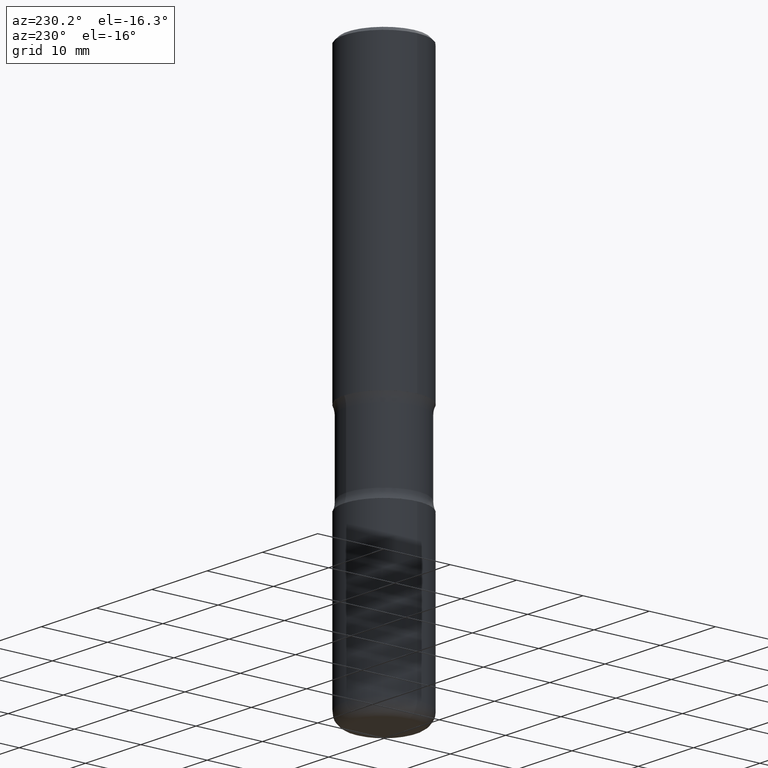
[diagram: clean part render]
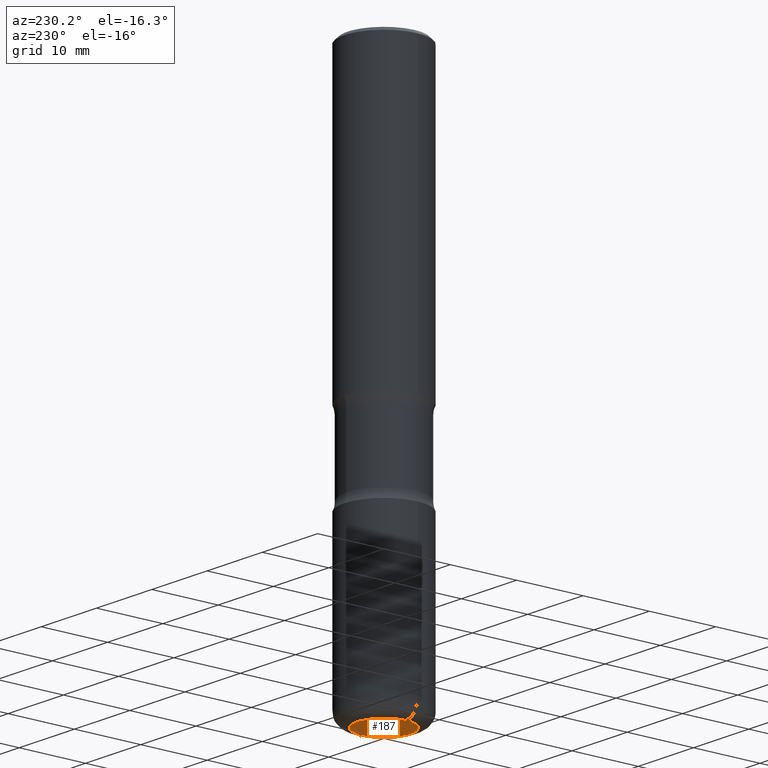
[diagram: same view with one face highlighted and labeled with its STEP entity id]
A machine part, auxiliary view. The second image highlights one B-rep face of the part: STEP entity #187.
In plain terms, the highlighted planar face has unit normal (0, -0, -1).
Its self-contained STEP definition (entity closure, byte-faithful):
#8 = DIRECTION ( 'NONE',  ( -2.445468806185136597E-29, 3.491481338843145583E-15, 1.000000000000000000 ) ) ;
#43 = DIRECTION ( 'NONE',  ( -2.445468806185136597E-29, 3.491481338843145583E-15, 1.000000000000000000 ) ) ;
#59 = CIRCLE ( 'NONE', #102, 0.1575000000000005285 ) ;
#91 = CARTESIAN_POINT ( 'NONE',  ( 7.991058417971172834E-29, -1.140911357093774960E-14, -3.267700000000000937 ) ) ;
#98 = FACE_OUTER_BOUND ( 'NONE', #536, .T. ) ;
#102 = AXIS2_PLACEMENT_3D ( 'NONE', #222, #43, #432 ) ;
#134 = AXIS2_PLACEMENT_3D ( 'NONE', #91, #8, #295 ) ;
#140 = DIRECTION ( 'NONE',  ( 2.438088387897960049E-29, -3.491481338843145188E-15, -1.000000000000000000 ) ) ;
#146 = VERTEX_POINT ( 'NONE', #440 ) ;
#164 = ORIENTED_EDGE ( 'NONE', *, *, #508, .F. ) ;
#170 = ORIENTED_EDGE ( 'NONE', *, *, #489, .F. ) ;
#187 = ADVANCED_FACE ( 'NONE', ( #98 ), #443, .T. ) ;
#201 = VERTEX_POINT ( 'NONE', #433 ) ;
#222 = CARTESIAN_POINT ( 'NONE',  ( 7.991058417971172834E-29, -1.140911357093774960E-14, -3.267700000000000937 ) ) ;
#285 = CIRCLE ( 'NONE', #134, 0.1575000000000005285 ) ;
#295 = DIRECTION ( 'NONE',  ( 1.000000000000000000, -6.982962677686262766E-15, 0.000000000000000000 ) ) ;
#357 = CARTESIAN_POINT ( 'NONE',  ( 1.590673181943243464E-28, -7.341872789436314080E-17, -3.267700000000000937 ) ) ;
#428 = AXIS2_PLACEMENT_3D ( 'NONE', #357, #140, #491 ) ;
#432 = DIRECTION ( 'NONE',  ( 1.000000000000000000, -6.982962677686262766E-15, 0.000000000000000000 ) ) ;
#433 = CARTESIAN_POINT ( 'NONE',  ( 0.1575000000000005285, -1.250893019267333944E-14, -3.267700000000000937 ) ) ;
#440 = CARTESIAN_POINT ( 'NONE',  ( -0.1575000000000005285, -9.873020404910509617E-15, -3.267700000000000937 ) ) ;
#443 = PLANE ( 'NONE',  #428 ) ;
#489 = EDGE_CURVE ( 'NONE', #146, #201, #285, .T. ) ;
#491 = DIRECTION ( 'NONE',  ( -1.000000000000000000, 6.982962677686265922E-15, -4.876176775795935793E-29 ) ) ;
#508 = EDGE_CURVE ( 'NONE', #201, #146, #59, .T. ) ;
#536 = EDGE_LOOP ( 'NONE', ( #164, #170 ) ) ;